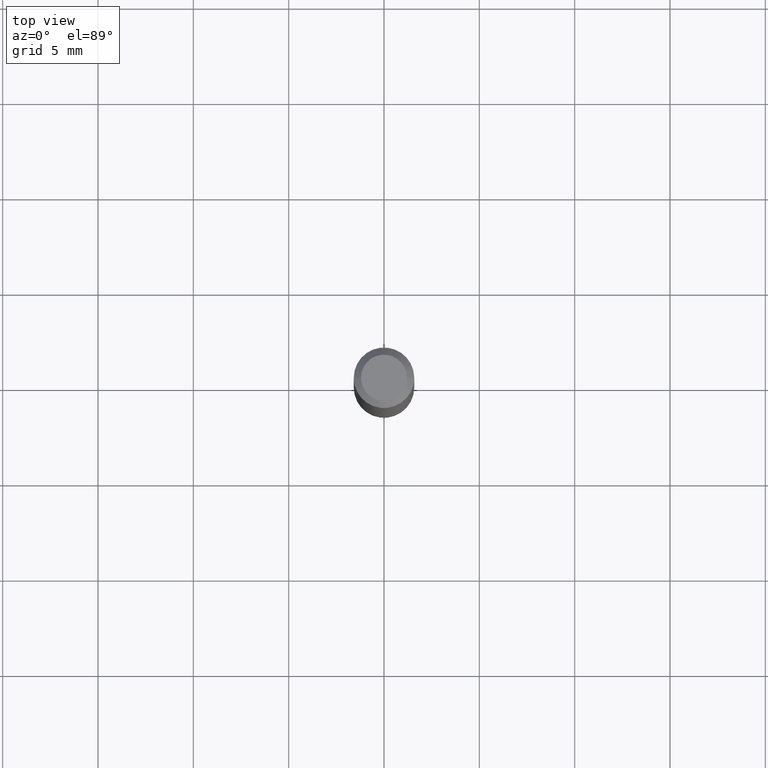
[diagram: clean part render]
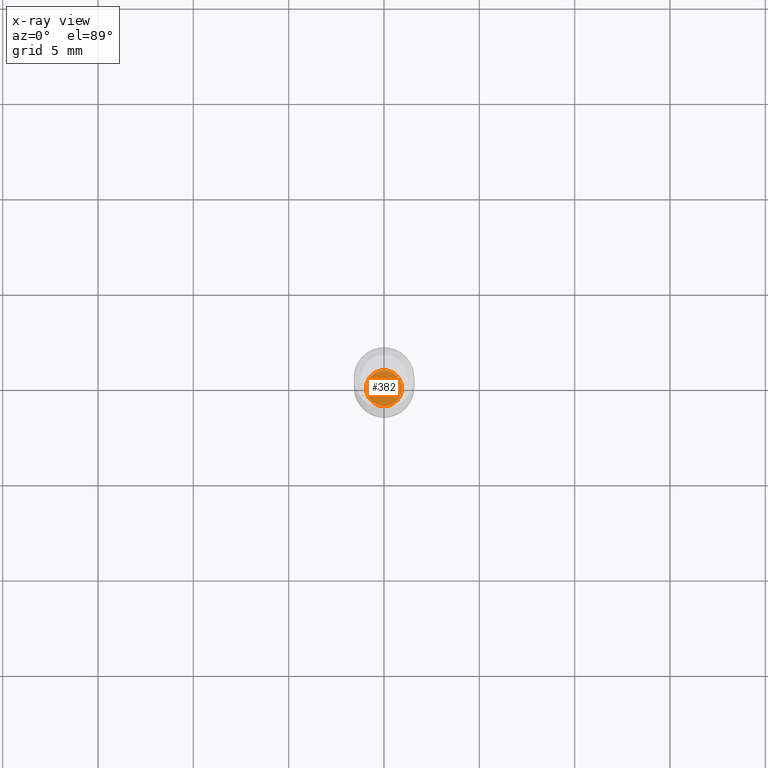
[diagram: x-ray — body ghosted, one internal face saturated and labeled with its STEP entity id]
A machine part, top view, then the same camera in x-ray: the body is ghosted and one INTERNAL B-rep face — a face not visible from any outside direction — is saturated and labeled: STEP entity #382.
In plain terms, the highlighted planar face has unit normal (-0, 0, 1).
Its self-contained STEP definition (entity closure, byte-faithful):
#5 = FACE_OUTER_BOUND ( 'NONE', #501, .T. ) ;
#35 = CIRCLE ( 'NONE', #327, 0.03700000000000008837 ) ;
#40 = DIRECTION ( 'NONE',  ( 1.000000000000000000, -6.982962677686264344E-15, 0.000000000000000000 ) ) ;
#42 = DIRECTION ( 'NONE',  ( 1.000000000000000000, -6.982962677686265922E-15, 4.876176775795935793E-29 ) ) ;
#81 = DIRECTION ( 'NONE',  ( 1.000000000000000000, -6.982962677686264344E-15, 0.000000000000000000 ) ) ;
#93 = CARTESIAN_POINT ( 'NONE',  ( -0.03700000000000008837, -4.186088667619663091E-15, -1.275000000000000133 ) ) ;
#100 = VERTEX_POINT ( 'NONE', #435 ) ;
#121 = DIRECTION ( 'NONE',  ( -2.438088387897960049E-29, 3.491481338843145188E-15, 1.000000000000000000 ) ) ;
#147 = EDGE_CURVE ( 'NONE', #514, #100, #35, .T. ) ;
#156 = AXIS2_PLACEMENT_3D ( 'NONE', #233, #308, #81 ) ;
#161 = PLANE ( 'NONE',  #360 ) ;
#167 = CIRCLE ( 'NONE', #156, 0.03700000000000008837 ) ;
#169 = CARTESIAN_POINT ( 'NONE',  ( 3.117972727886049049E-29, -4.451638707025011594E-15, -1.275000000000000133 ) ) ;
#191 = ORIENTED_EDGE ( 'NONE', *, *, #196, .F. ) ;
#196 = EDGE_CURVE ( 'NONE', #100, #514, #167, .T. ) ;
#233 = CARTESIAN_POINT ( 'NONE',  ( 3.117972727886049049E-29, -4.451638707025011594E-15, -1.275000000000000133 ) ) ;
#308 = DIRECTION ( 'NONE',  ( -2.445468806185136597E-29, 3.491481338843145583E-15, 1.000000000000000000 ) ) ;
#327 = AXIS2_PLACEMENT_3D ( 'NONE', #475, #472, #40 ) ;
#360 = AXIS2_PLACEMENT_3D ( 'NONE', #169, #121, #42 ) ;
#382 = ADVANCED_FACE ( 'NONE', ( #5 ), #161, .F. ) ;
#432 = ORIENTED_EDGE ( 'NONE', *, *, #147, .F. ) ;
#435 = CARTESIAN_POINT ( 'NONE',  ( 0.03700000000000008837, -4.710008326099403589E-15, -1.275000000000000133 ) ) ;
#472 = DIRECTION ( 'NONE',  ( -2.445468806185136597E-29, 3.491481338843145583E-15, 1.000000000000000000 ) ) ;
#475 = CARTESIAN_POINT ( 'NONE',  ( 3.117972727886049049E-29, -4.451638707025011594E-15, -1.275000000000000133 ) ) ;
#501 = EDGE_LOOP ( 'NONE', ( #191, #432 ) ) ;
#514 = VERTEX_POINT ( 'NONE', #93 ) ;